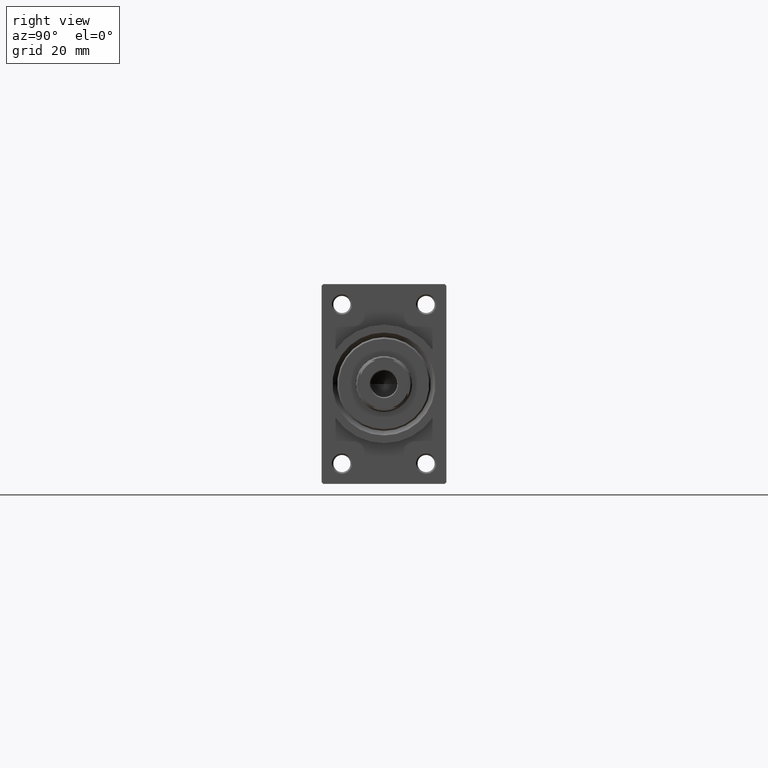
[diagram: clean part render]
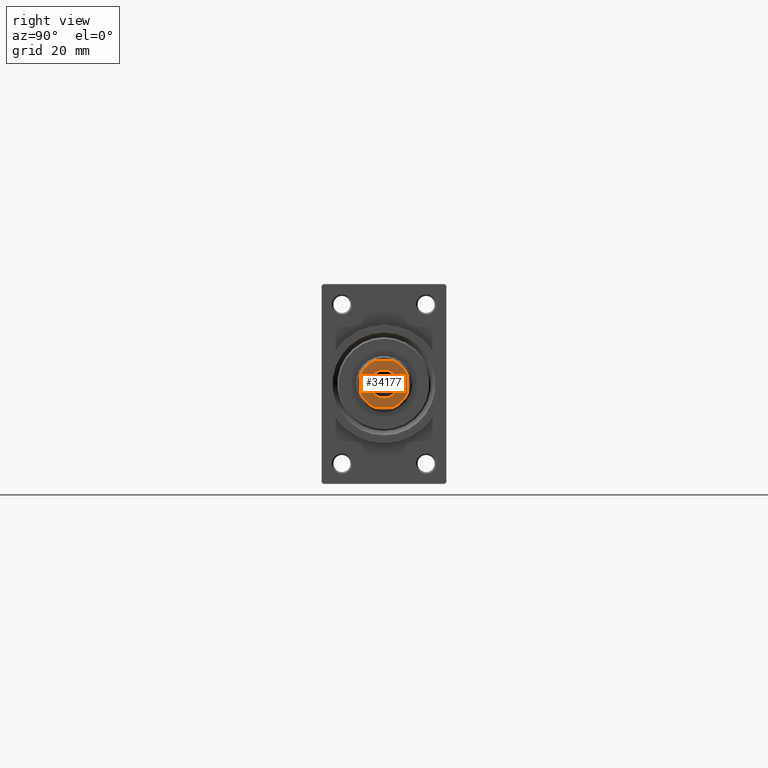
[diagram: same view with one face highlighted and labeled with its STEP entity id]
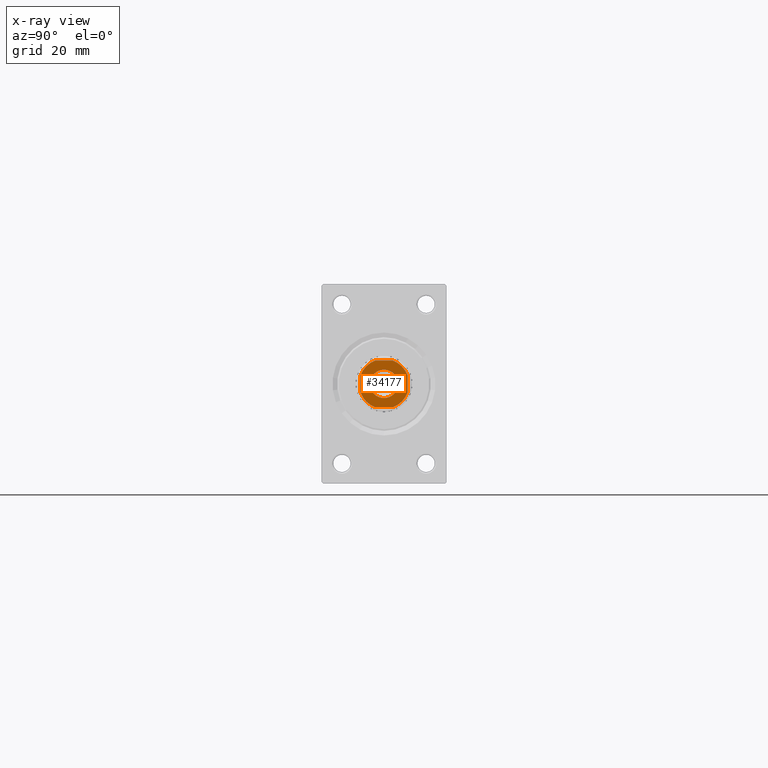
[diagram: x-ray of the same camera — body ghosted, the highlighted face saturated]
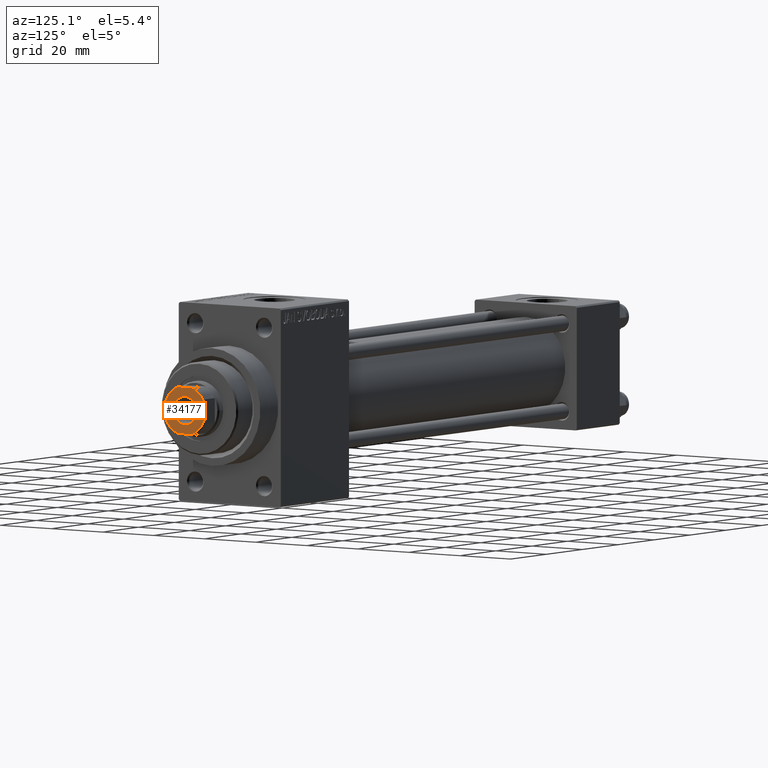
[diagram: same view with one face highlighted and labeled with its STEP entity id]
A machine part, right view. The second image highlights one B-rep face of the part: STEP entity #34177.
The next image is the same camera in x-ray: the body ghosted, the highlighted face saturated — about 0% of this face is hidden behind the body in this view.
A second angle (auxiliary view) of the same face is appended — the face is thin or edge-on in the first view.
In plain terms, the highlighted planar face has unit normal (1, 0, 0).
Its self-contained STEP definition (entity closure, byte-faithful):
#881 = DIRECTION ( 'NONE',  ( 1.000000000000000000, 0.000000000000000000, 0.000000000000000000 ) ) ;
#1312 = EDGE_LOOP ( 'NONE', ( #34911, #20985, #1776, #9893, #43386, #39616, #36863, #29801 ) ) ;
#1776 = ORIENTED_EDGE ( 'NONE', *, *, #37574, .T. ) ;
#1824 = ORIENTED_EDGE ( 'NONE', *, *, #17605, .T. ) ;
#3541 = CARTESIAN_POINT ( 'NONE',  ( 7.500000000000000000, 7.500000000000000000, 190.0000000000000000 ) ) ;
#4212 = AXIS2_PLACEMENT_3D ( 'NONE', #37722, #27003, #22726 ) ;
#4238 = AXIS2_PLACEMENT_3D ( 'NONE', #22328, #33516, #881 ) ;
#4503 = CARTESIAN_POINT ( 'NONE',  ( 0.000000000000000000, 0.000000000000000000, 190.0000000000000000 ) ) ;
#5174 = CARTESIAN_POINT ( 'NONE',  ( -2.783882181414448098, -7.500000000000000000, 190.0000000000000000 ) ) ;
#5181 = CIRCLE ( 'NONE', #8251, 4.550000000000054001 ) ;
#6548 = CARTESIAN_POINT ( 'NONE',  ( 0.000000000000000000, 0.000000000000000000, 190.0000000000000000 ) ) ;
#7119 = DIRECTION ( 'NONE',  ( -1.156482317317871478E-16, 1.000000000000000000, -0.000000000000000000 ) ) ;
#7968 = LINE ( 'NONE', #30989, #37894 ) ;
#8251 = AXIS2_PLACEMENT_3D ( 'NONE', #6548, #24661, #25367 ) ;
#8409 = CARTESIAN_POINT ( 'NONE',  ( 0.000000000000000000, 0.000000000000000000, 190.0000000000000000 ) ) ;
#9283 = VERTEX_POINT ( 'NONE', #13954 ) ;
#9893 = ORIENTED_EDGE ( 'NONE', *, *, #39499, .T. ) ;
#10039 = VERTEX_POINT ( 'NONE', #5174 ) ;
#10673 = EDGE_LOOP ( 'NONE', ( #1824, #30654 ) ) ;
#11074 = CIRCLE ( 'NONE', #4212, 7.999999999999783284 ) ;
#11201 = VERTEX_POINT ( 'NONE', #29266 ) ;
#12738 = VERTEX_POINT ( 'NONE', #16730 ) ;
#13626 = VERTEX_POINT ( 'NONE', #42919 ) ;
#13954 = CARTESIAN_POINT ( 'NONE',  ( 7.500000000000000888, -2.783882181414385037, 190.0000000000000000 ) ) ;
#14023 = FACE_OUTER_BOUND ( 'NONE', #1312, .T. ) ;
#14531 = VERTEX_POINT ( 'NONE', #27987 ) ;
#14533 = CARTESIAN_POINT ( 'NONE',  ( -7.499999999999998224, -7.500000000000000000, 190.0000000000000000 ) ) ;
#15284 = CIRCLE ( 'NONE', #16780, 4.550000000000054001 ) ;
#16018 = VERTEX_POINT ( 'NONE', #34087 ) ;
#16730 = CARTESIAN_POINT ( 'NONE',  ( 2.783882181414387702, -7.500000000000000000, 190.0000000000000000 ) ) ;
#16780 = AXIS2_PLACEMENT_3D ( 'NONE', #4503, #30468, #19966 ) ;
#17297 = VERTEX_POINT ( 'NONE', #28297 ) ;
#17605 = EDGE_CURVE ( 'NONE', #11201, #27252, #15284, .T. ) ;
#18452 = DIRECTION ( 'NONE',  ( -0.000000000000000000, 0.000000000000000000, 1.000000000000000000 ) ) ;
#19124 = DIRECTION ( 'NONE',  ( 1.000000000000000000, 0.000000000000000000, 0.000000000000000000 ) ) ;
#19219 = CARTESIAN_POINT ( 'NONE',  ( -7.500000000000000000, 7.499999999999998224, 190.0000000000000000 ) ) ;
#19286 = EDGE_CURVE ( 'NONE', #10039, #12738, #32634, .T. ) ;
#19420 = LINE ( 'NONE', #3541, #29701 ) ;
#19792 = DIRECTION ( 'NONE',  ( -1.000000000000000000, -1.156482317317871478E-16, -0.000000000000000000 ) ) ;
#19966 = DIRECTION ( 'NONE',  ( 1.000000000000000000, 0.000000000000000000, 0.000000000000000000 ) ) ;
#20985 = ORIENTED_EDGE ( 'NONE', *, *, #31391, .T. ) ;
#22328 = CARTESIAN_POINT ( 'NONE',  ( 0.000000000000000000, 0.000000000000000000, 190.0000000000000000 ) ) ;
#22726 = DIRECTION ( 'NONE',  ( 1.000000000000000000, 0.000000000000000000, 0.000000000000000000 ) ) ;
#24661 = DIRECTION ( 'NONE',  ( 0.000000000000000000, -0.000000000000000000, -1.000000000000000000 ) ) ;
#25367 = DIRECTION ( 'NONE',  ( 1.000000000000000000, 0.000000000000000000, 0.000000000000000000 ) ) ;
#27003 = DIRECTION ( 'NONE',  ( -0.000000000000000000, 0.000000000000000000, 1.000000000000000000 ) ) ;
#27079 = CIRCLE ( 'NONE', #4238, 7.999999999999803713 ) ;
#27252 = VERTEX_POINT ( 'NONE', #40179 ) ;
#27987 = CARTESIAN_POINT ( 'NONE',  ( 2.783882181414388590, 7.499999999999999112, 190.0000000000000000 ) ) ;
#28297 = CARTESIAN_POINT ( 'NONE',  ( -7.499999999999999112, 2.783882181414451651, 190.0000000000000000 ) ) ;
#28556 = CARTESIAN_POINT ( 'NONE',  ( 0.000000000000000000, 0.000000000000000000, 190.0000000000000000 ) ) ;
#29266 = CARTESIAN_POINT ( 'NONE',  ( 4.550000000000054001, 0.000000000000000000, 190.0000000000000000 ) ) ;
#29701 = VECTOR ( 'NONE', #7119, 1000.000000000000000 ) ;
#29801 = ORIENTED_EDGE ( 'NONE', *, *, #36180, .T. ) ;
#30468 = DIRECTION ( 'NONE',  ( 0.000000000000000000, -0.000000000000000000, -1.000000000000000000 ) ) ;
#30654 = ORIENTED_EDGE ( 'NONE', *, *, #37306, .T. ) ;
#30989 = CARTESIAN_POINT ( 'NONE',  ( -7.500000000000000000, 7.499999999999998224, 190.0000000000000000 ) ) ;
#31026 = AXIS2_PLACEMENT_3D ( 'NONE', #39897, #18452, #36786 ) ;
#31391 = EDGE_CURVE ( 'NONE', #13626, #14531, #11074, .T. ) ;
#31640 = VECTOR ( 'NONE', #44229, 1000.000000000000000 ) ;
#31766 = CIRCLE ( 'NONE', #31026, 7.999999999999783284 ) ;
#32048 = CARTESIAN_POINT ( 'NONE',  ( -7.499999999999997335, -2.783882181414453871, 190.0000000000000000 ) ) ;
#32094 = EDGE_CURVE ( 'NONE', #37314, #10039, #27079, .T. ) ;
#32129 = EDGE_CURVE ( 'NONE', #17297, #37314, #40441, .T. ) ;
#32634 = LINE ( 'NONE', #14533, #42709 ) ;
#33516 = DIRECTION ( 'NONE',  ( -0.000000000000000000, 0.000000000000000000, 1.000000000000000000 ) ) ;
#34087 = CARTESIAN_POINT ( 'NONE',  ( -2.783882181414451651, 7.499999999999999112, 190.0000000000000000 ) ) ;
#34177 = ADVANCED_FACE ( 'NONE', ( #35237, #14023 ), #46643, .T. ) ;
#34911 = ORIENTED_EDGE ( 'NONE', *, *, #42941, .T. ) ;
#35237 = FACE_BOUND ( 'NONE', #10673, .T. ) ;
#36180 = EDGE_CURVE ( 'NONE', #12738, #9283, #31766, .T. ) ;
#36451 = DIRECTION ( 'NONE',  ( 1.000000000000000000, 0.000000000000000000, 0.000000000000000000 ) ) ;
#36786 = DIRECTION ( 'NONE',  ( 1.000000000000000000, 0.000000000000000000, 0.000000000000000000 ) ) ;
#36863 = ORIENTED_EDGE ( 'NONE', *, *, #19286, .T. ) ;
#37015 = AXIS2_PLACEMENT_3D ( 'NONE', #28556, #43072, #46876 ) ;
#37306 = EDGE_CURVE ( 'NONE', #27252, #11201, #5181, .T. ) ;
#37314 = VERTEX_POINT ( 'NONE', #32048 ) ;
#37574 = EDGE_CURVE ( 'NONE', #14531, #16018, #7968, .T. ) ;
#37722 = CARTESIAN_POINT ( 'NONE',  ( 0.000000000000000000, 0.000000000000000000, 190.0000000000000000 ) ) ;
#37894 = VECTOR ( 'NONE', #19792, 1000.000000000000000 ) ;
#38172 = DIRECTION ( 'NONE',  ( -0.000000000000000000, 0.000000000000000000, 1.000000000000000000 ) ) ;
#39499 = EDGE_CURVE ( 'NONE', #16018, #17297, #40987, .T. ) ;
#39616 = ORIENTED_EDGE ( 'NONE', *, *, #32094, .T. ) ;
#39897 = CARTESIAN_POINT ( 'NONE',  ( 0.000000000000000000, 0.000000000000000000, 190.0000000000000000 ) ) ;
#40179 = CARTESIAN_POINT ( 'NONE',  ( -4.550000000000054001, 5.572142936120522408E-16, 190.0000000000000000 ) ) ;
#40441 = LINE ( 'NONE', #19219, #31640 ) ;
#40987 = CIRCLE ( 'NONE', #42508, 7.999999999999803713 ) ;
#42508 = AXIS2_PLACEMENT_3D ( 'NONE', #8409, #38172, #19124 ) ;
#42709 = VECTOR ( 'NONE', #36451, 1000.000000000000000 ) ;
#42919 = CARTESIAN_POINT ( 'NONE',  ( 7.500000000000000888, 2.783882181414386370, 190.0000000000000000 ) ) ;
#42941 = EDGE_CURVE ( 'NONE', #9283, #13626, #19420, .T. ) ;
#43072 = DIRECTION ( 'NONE',  ( -0.000000000000000000, 0.000000000000000000, 1.000000000000000000 ) ) ;
#43386 = ORIENTED_EDGE ( 'NONE', *, *, #32129, .T. ) ;
#44229 = DIRECTION ( 'NONE',  ( 1.156482317317871725E-16, -1.000000000000000000, 0.000000000000000000 ) ) ;
#46643 = PLANE ( 'NONE',  #37015 ) ;
#46876 = DIRECTION ( 'NONE',  ( 1.000000000000000000, 0.000000000000000000, 0.000000000000000000 ) ) ;